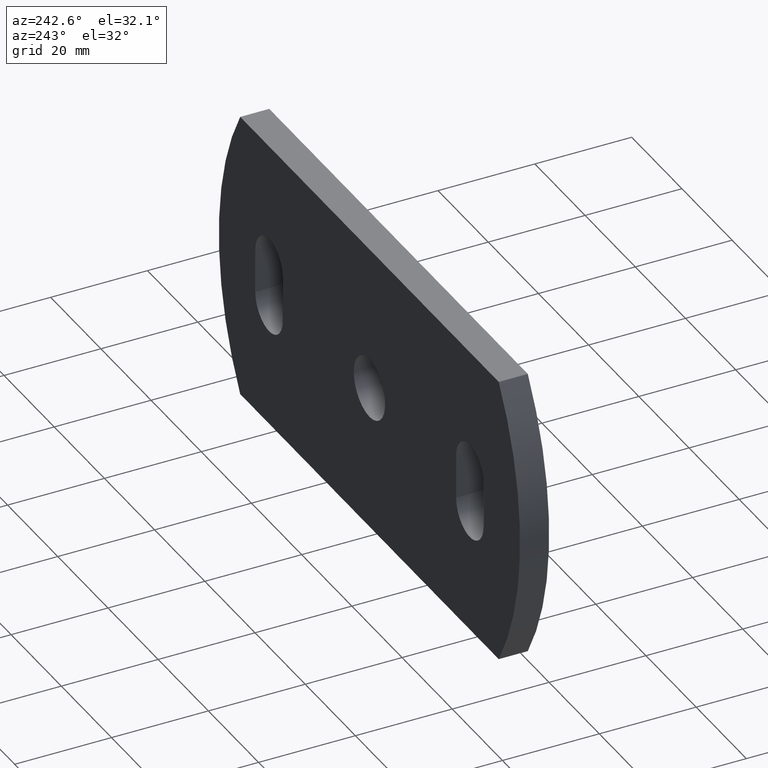
[diagram: clean part render]
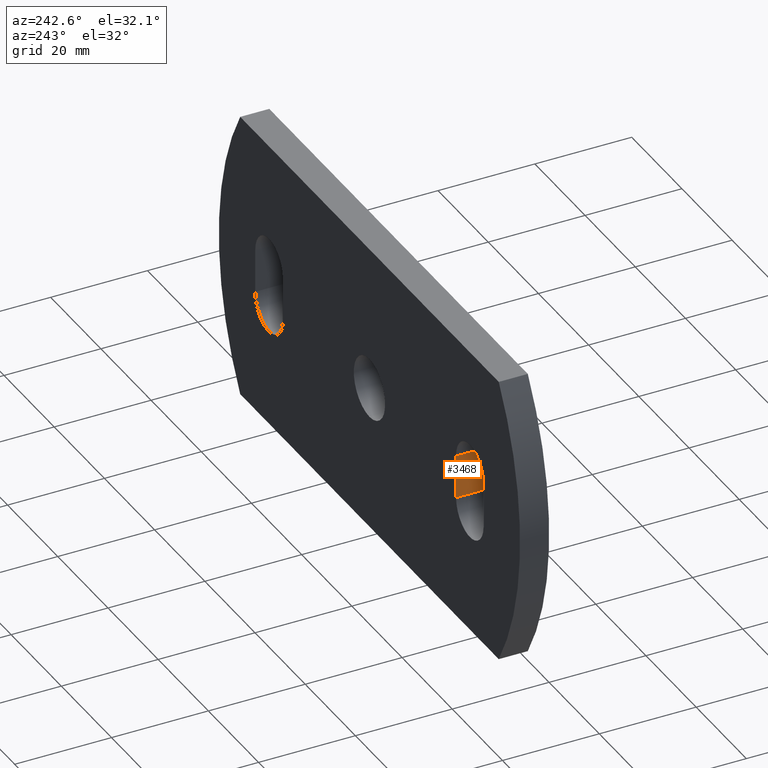
[diagram: same view with one face highlighted and labeled with its STEP entity id]
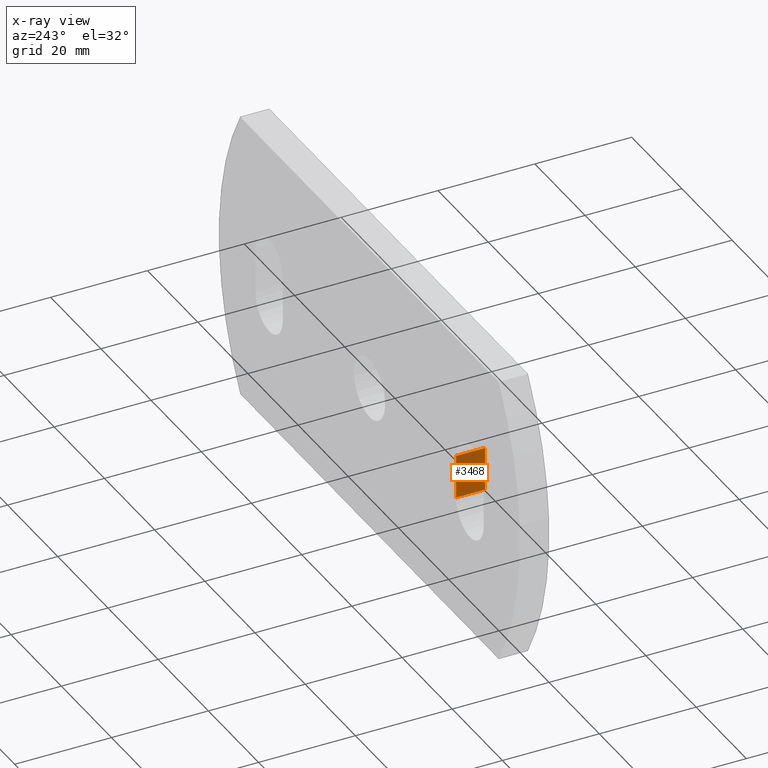
[diagram: x-ray of the same camera — body ghosted, the highlighted face saturated]
A machine part, auxiliary view. The second image highlights one B-rep face of the part: STEP entity #3468.
The next image is the same camera in x-ray: the body ghosted, the highlighted face saturated — about 0% of this face is hidden behind the body in this view.
In plain terms, the highlighted planar face has unit normal (1, 0, -0).
Its self-contained STEP definition (entity closure, byte-faithful):
#357 = AXIS2_PLACEMENT_3D ( 'NONE', #4342, #7211, #4399 ) ;
#858 = LINE ( 'NONE', #9397, #3965 ) ;
#938 = ORIENTED_EDGE ( 'NONE', *, *, #5663, .T. ) ;
#1050 = LINE ( 'NONE', #9423, #5281 ) ;
#1471 = CARTESIAN_POINT ( 'NONE',  ( -34.50000000000000000, 0.0000000000000000000, -4.499999999999991100 ) ) ;
#1772 = VERTEX_POINT ( 'NONE', #2036 ) ;
#1778 = EDGE_LOOP ( 'NONE', ( #7511, #6837, #3161, #938 ) ) ;
#1953 = VECTOR ( 'NONE', #5109, 1000.000000000000000 ) ;
#2036 = CARTESIAN_POINT ( 'NONE',  ( -34.50000000000000000, 6.000000000000000000, -4.499999999999991100 ) ) ;
#2242 = VERTEX_POINT ( 'NONE', #2587 ) ;
#2294 = EDGE_CURVE ( 'NONE', #2242, #8964, #2518, .T. ) ;
#2356 = DIRECTION ( 'NONE',  ( -0.0000000000000000000, 1.000000000000000000, -0.0000000000000000000 ) ) ;
#2417 = CARTESIAN_POINT ( 'NONE',  ( -34.50000000000000000, 0.0000000000000000000, -4.499999999999991100 ) ) ;
#2518 = LINE ( 'NONE', #6970, #1953 ) ;
#2587 = CARTESIAN_POINT ( 'NONE',  ( -34.50000000000000000, 0.0000000000000000000, 4.499999999999991100 ) ) ;
#2968 = CARTESIAN_POINT ( 'NONE',  ( -34.50000000000000000, 6.000000000000000000, 4.499999999999991100 ) ) ;
#3161 = ORIENTED_EDGE ( 'NONE', *, *, #2294, .F. ) ;
#3286 = FACE_OUTER_BOUND ( 'NONE', #1778, .T. ) ;
#3468 = ADVANCED_FACE ( 'NONE', ( #3286 ), #7948, .F. ) ;
#3957 = VECTOR ( 'NONE', #5179, 1000.000000000000000 ) ;
#3965 = VECTOR ( 'NONE', #2356, 1000.000000000000000 ) ;
#4174 = VERTEX_POINT ( 'NONE', #2968 ) ;
#4342 = CARTESIAN_POINT ( 'NONE',  ( -34.50000000000000000, 0.0000000000000000000, -4.499999999999991100 ) ) ;
#4399 = DIRECTION ( 'NONE',  ( -0.0000000000000000000, 0.0000000000000000000, -1.000000000000000000 ) ) ;
#5028 = DIRECTION ( 'NONE',  ( -0.0000000000000000000, -0.0000000000000000000, -1.000000000000000000 ) ) ;
#5109 = DIRECTION ( 'NONE',  ( -0.0000000000000000000, -0.0000000000000000000, -1.000000000000000000 ) ) ;
#5179 = DIRECTION ( 'NONE',  ( -0.0000000000000000000, 1.000000000000000000, -0.0000000000000000000 ) ) ;
#5281 = VECTOR ( 'NONE', #5028, 1000.000000000000000 ) ;
#5663 = EDGE_CURVE ( 'NONE', #2242, #4174, #858, .T. ) ;
#5895 = LINE ( 'NONE', #1471, #3957 ) ;
#5988 = EDGE_CURVE ( 'NONE', #8964, #1772, #5895, .T. ) ;
#6837 = ORIENTED_EDGE ( 'NONE', *, *, #5988, .F. ) ;
#6970 = CARTESIAN_POINT ( 'NONE',  ( -34.50000000000000000, 0.0000000000000000000, -4.499999999999991100 ) ) ;
#7211 = DIRECTION ( 'NONE',  ( 1.000000000000000000, 0.0000000000000000000, -0.0000000000000000000 ) ) ;
#7511 = ORIENTED_EDGE ( 'NONE', *, *, #8785, .T. ) ;
#7948 = PLANE ( 'NONE',  #357 ) ;
#8785 = EDGE_CURVE ( 'NONE', #4174, #1772, #1050, .T. ) ;
#8964 = VERTEX_POINT ( 'NONE', #2417 ) ;
#9397 = CARTESIAN_POINT ( 'NONE',  ( -34.50000000000000000, 0.0000000000000000000, 4.499999999999991100 ) ) ;
#9423 = CARTESIAN_POINT ( 'NONE',  ( -34.50000000000000000, 6.000000000000000000, -4.499999999999991100 ) ) ;